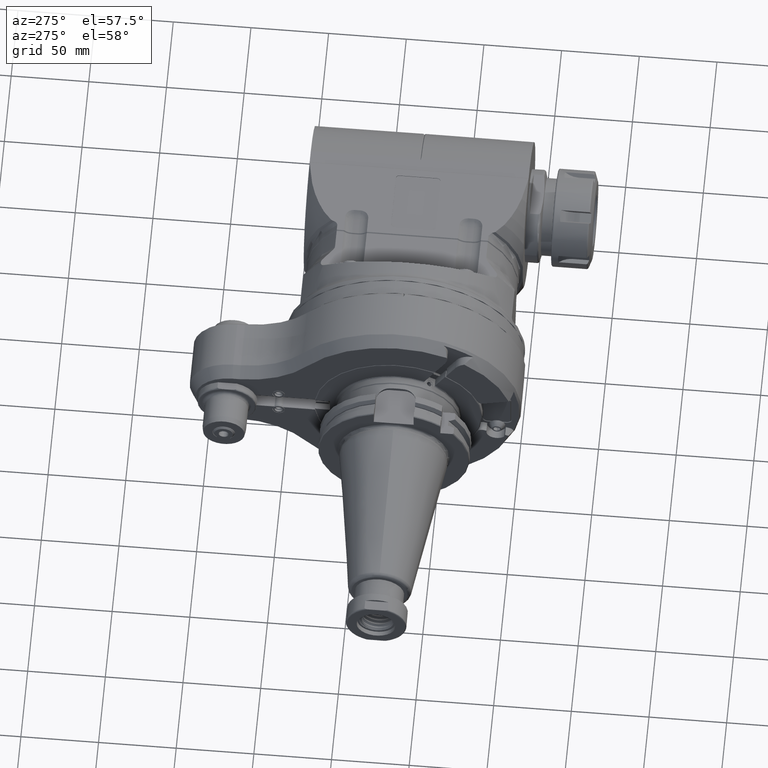
[diagram: clean part render]
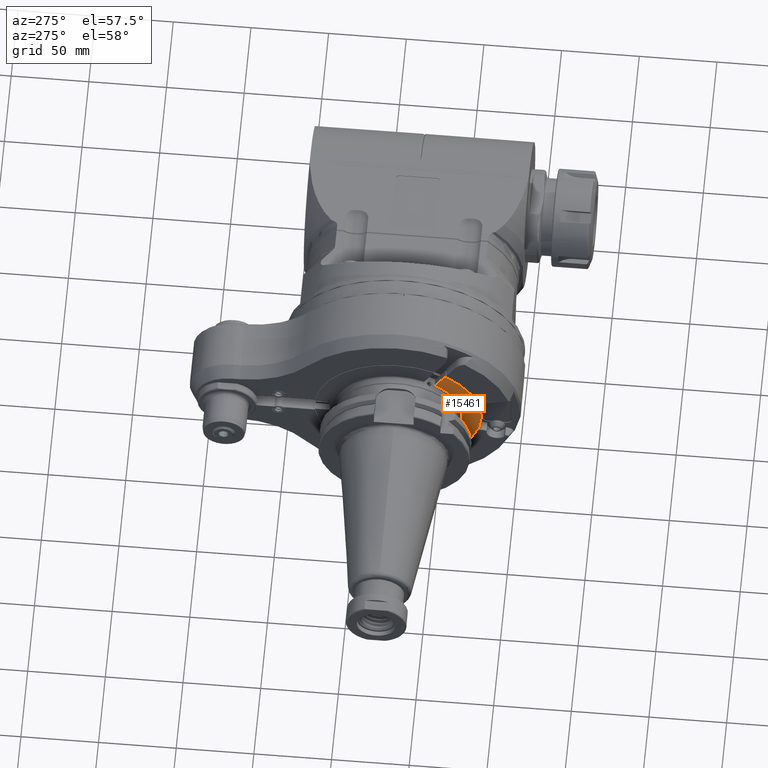
[diagram: same view with one face highlighted and labeled with its STEP entity id]
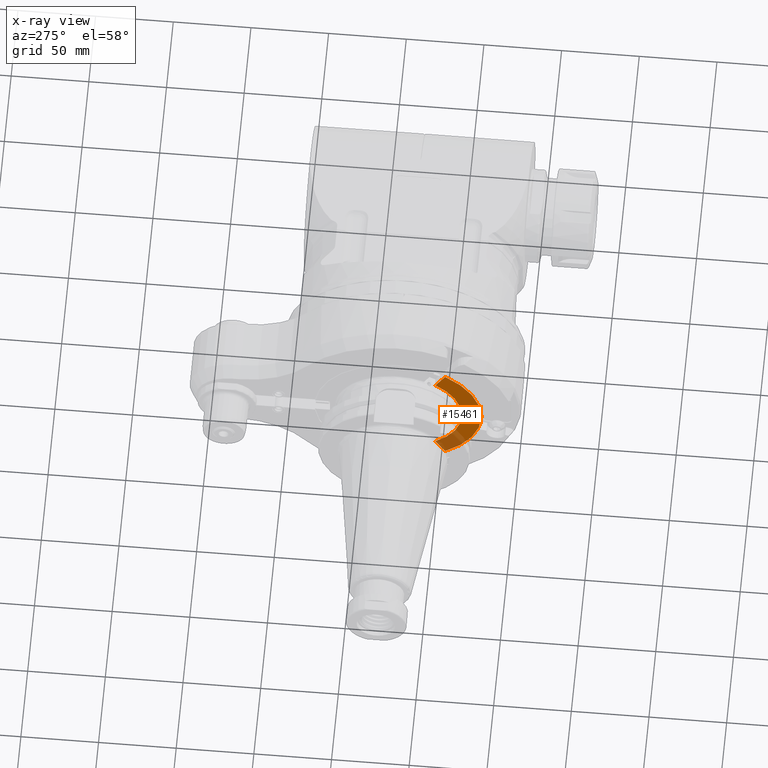
[diagram: x-ray of the same camera — body ghosted, the highlighted face saturated]
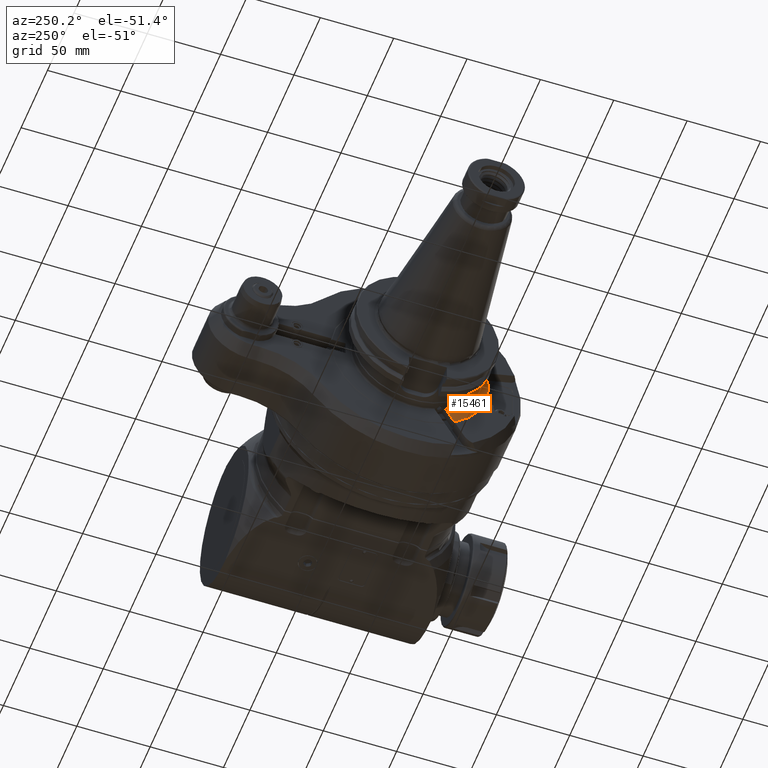
[diagram: same view with one face highlighted and labeled with its STEP entity id]
A machine part, auxiliary view. The second image highlights one B-rep face of the part: STEP entity #15461.
The next image is the same camera in x-ray: the body ghosted, the highlighted face saturated — about 22% of this face is hidden behind the body in this view.
A second angle (auxiliary view) of the same face is appended — the face is thin or edge-on in the first view.
In plain terms, the highlighted planar face has unit normal (1, 0, 0).
Its self-contained STEP definition (entity closure, byte-faithful):
#1035=PLANE('',#16753);
#1601=FACE_OUTER_BOUND('',#2494,.T.);
#2494=EDGE_LOOP('',(#12048,#12049,#12050,#12051));
#3529=LINE('',#37358,#4684);
#3533=LINE('',#37376,#4688);
#4684=VECTOR('',#19582,0.493926285410261);
#4688=VECTOR('',#19590,0.493926278292544);
#5743=CIRCLE('',#16754,1.61417322834646);
#5744=CIRCLE('',#16755,2.10629921259843);
#6744=VERTEX_POINT('',#37356);
#6745=VERTEX_POINT('',#37357);
#6748=VERTEX_POINT('',#37373);
#6749=VERTEX_POINT('',#37375);
#8699=EDGE_CURVE('',#6744,#6745,#3529,.T.);
#8704=EDGE_CURVE('',#6745,#6748,#5743,.T.);
#8705=EDGE_CURVE('',#6748,#6749,#3533,.T.);
#8706=EDGE_CURVE('',#6749,#6744,#5744,.T.);
#12048=ORIENTED_EDGE('',*,*,#8704,.T.);
#12049=ORIENTED_EDGE('',*,*,#8705,.T.);
#12050=ORIENTED_EDGE('',*,*,#8706,.T.);
#12051=ORIENTED_EDGE('',*,*,#8699,.T.);
#15461=ADVANCED_FACE('',(#1601),#1035,.F.);
#16753=AXIS2_PLACEMENT_3D('',#37372,#19586,#19587);
#16754=AXIS2_PLACEMENT_3D('',#37374,#19588,#19589);
#16755=AXIS2_PLACEMENT_3D('',#37377,#19591,#19592);
#19582=DIRECTION('',(0.,0.499999999999275,-0.866025403784857));
#19586=DIRECTION('center_axis',(1.,0.,0.));
#19587=DIRECTION('ref_axis',(0.,-1.,0.));
#19588=DIRECTION('center_axis',(1.,0.,0.));
#19589=DIRECTION('ref_axis',(0.,-0.582105058005889,0.813113584589484));
#19590=DIRECTION('',(0.,-0.499999999999275,-0.866025403784857));
#19591=DIRECTION('center_axis',(-1.,0.,0.));
#19592=DIRECTION('ref_axis',(0.,-0.563350102445011,-0.826218289603417));
#37356=CARTESIAN_POINT('',(1.45669291338583,-1.18658387719724,1.74026293282598));
#37357=CARTESIAN_POINT('',(1.45669291338583,-0.939618400718483,1.31250617984894));
#37358=CARTESIAN_POINT('',(1.45669291338583,-1.18658387719724,1.74026293282598));
#37372=CARTESIAN_POINT('Origin',(1.45669291338583,-1.75196850393701,0.));
#37373=CARTESIAN_POINT('',(1.45669291338583,-0.939618400718322,-1.31250617984906));
#37374=CARTESIAN_POINT('Origin',(1.45669291338583,0.,0.));
#37375=CARTESIAN_POINT('',(1.45669291338583,-1.18658387719724,-1.74026293282598));
#37376=CARTESIAN_POINT('',(1.45669291338583,-0.939620738051181,-1.31251022822795));
#37377=CARTESIAN_POINT('Origin',(1.45669291338583,0.,0.));